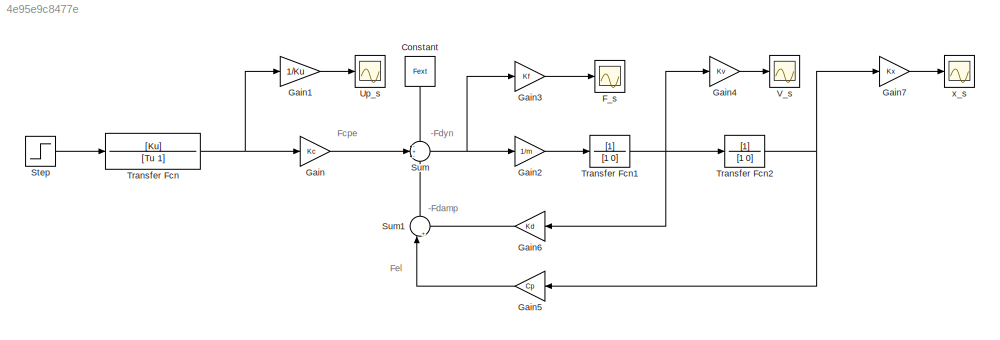
MODEL slx_4e95e9c8477e
KIND model
CONFIG AbsTol = auto
CONFIG EnableMultiTasking = off
CONFIG FixedStep = auto
CONFIG MaxStep = 1e-4
CONFIG MinStep = auto
CONFIG RelTol = 1e-3
CONFIG SampleTimeConstraint = Unconstrained
CONFIG SolverName = ode23t
CONFIG StartTime = 0.0
CONFIG StopTime = Tmdl
BLOCK [Constant] Constant
  NameLocation = left
  Value = Fext
BLOCK [Scope] F_s
  Floating = off
  NumInputPorts = 1
  Ports = [1]
  ScopeSpecificationString = Simulink.scopes.TimeScopeBlockCfg('CurrentConfiguration', extmgr.ConfigurationSet(extmgr.Configuration('Core','General UI',true,'FigureColor',[1 1 1]),extmgr.Configuration('Core','Source UI',true),extmgr.Configuration('Sources','WiredSimulink',true,'DataLoggingVariableName','F_s','DataLogging',true),extmgr.Configuration('Visuals','Time Domain',true,'SerializedDisplays',{struct('MinYLimReal','-198....<+2304ch>
BLOCK [Gain] Gain
  Gain = Kc
BLOCK [Gain] Gain1
  Gain = 1/Ku
BLOCK [Gain] Gain2
  Gain = 1/m
BLOCK [Gain] Gain3
  Gain = Kf
BLOCK [Gain] Gain4
  Gain = Kv
BLOCK [Gain] Gain5
  Gain = Cp
  NameLocation = top
BLOCK [Gain] Gain6
  Gain = Kd
  NameLocation = top
BLOCK [Gain] Gain7
  Gain = Kx
BLOCK [Step] Step
  After = u
  SampleTime = 0
  Time = 0
BLOCK [Sum] Sum
  Inputs = -+-
  Ports = [3, 1]
BLOCK [Sum] Sum1
  Inputs = |++
  NameLocation = right
  Ports = [2, 1]
BLOCK [TransferFcn] Transfer Fcn
  Denominator = [Tu 1]
  Numerator = [Ku]
BLOCK [TransferFcn] Transfer Fcn1
  Denominator = [1 0]
BLOCK [TransferFcn] Transfer Fcn2
  Denominator = [1 0]
BLOCK [Scope] Up_s
  Floating = off
  NumInputPorts = 1
  Ports = [1]
  ScopeSpecificationString = Simulink.scopes.TimeScopeBlockCfg('CurrentConfiguration', extmgr.ConfigurationSet(extmgr.Configuration('Core','General UI',true,'FigureColor',[1 1 1]),extmgr.Configuration('Core','Source UI',true),extmgr.Configuration('Sources','WiredSimulink',true,'DataLoggingVariableName','Up_s','DataLogging',true),extmgr.Configuration('Visuals','Time Domain',true,'SerializedDisplays',{struct('MinYLimReal','-1.2...<+2273ch>
BLOCK [Scope] V_s
  Floating = off
  NumInputPorts = 1
  Ports = [1]
  ScopeSpecificationString = Simulink.scopes.TimeScopeBlockCfg('CurrentConfiguration', extmgr.ConfigurationSet(extmgr.Configuration('Core','General UI',true,'FigureColor',[1 1 1]),extmgr.Configuration('Core','Source UI',true),extmgr.Configuration('Sources','WiredSimulink',true,'DataLoggingVariableName','V_s','DataLogging',true),extmgr.Configuration('Visuals','Time Domain',true,'SerializedDisplays',{struct('MinYLimReal','-0.03...<+2306ch>
BLOCK [Scope] x_s
  Floating = off
  NumInputPorts = 1
  Ports = [1]
  ScopeSpecificationString = Simulink.scopes.TimeScopeBlockCfg('CurrentConfiguration', extmgr.ConfigurationSet(extmgr.Configuration('Core','General UI',true,'FigureColor',[1 1 1]),extmgr.Configuration('Core','Source UI',true),extmgr.Configuration('Sources','WiredSimulink',true,'DataLoggingVariableName','x_s','DataLogging',true),extmgr.Configuration('Visuals','Time Domain',true,'SerializedDisplays',{struct('MinYLimReal','-0.00...<+2335ch>
ANNOTATION (root): -Fdamp
ANNOTATION (root): -Fdyn
ANNOTATION (root): Fcpe
ANNOTATION (root): Fel
LINE Constant:1 -> Sum:1
LINE Gain1:1 -> Up_s:1
LINE Gain2:1 -> Transfer Fcn1:1
LINE Gain3:1 -> F_s:1
LINE Gain4:1 -> V_s:1
LINE Gain5:1 -> Sum1:1
LINE Gain6:1 -> Sum1:2
LINE Gain7:1 -> x_s:1
LINE Gain:1 -> Sum:2
LINE Step:1 -> Transfer Fcn:1
LINE Sum1:1 -> Sum:3
NET Sum:1 -> Gain2:1, Gain3:1
NET Transfer Fcn1:1 -> Gain4:1, Gain6:1, Transfer Fcn2:1
NET Transfer Fcn2:1 -> Gain5:1, Gain7:1
NET Transfer Fcn:1 -> Gain1:1, Gain:1
note: NET lines group one-source signal fan-out (src -> all destinations, sorted); 1:1 wires keep LINE
